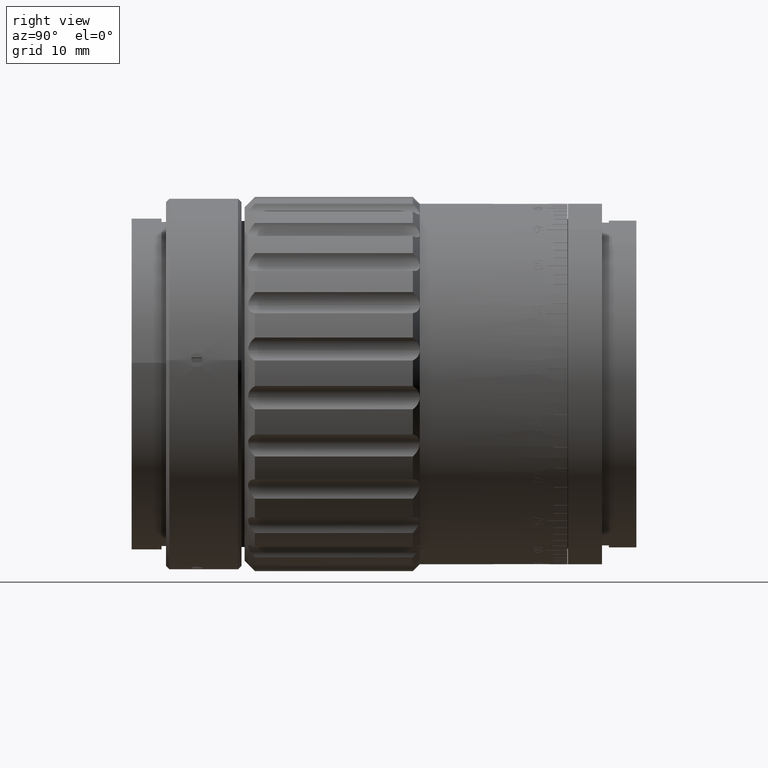
[diagram: clean part render]
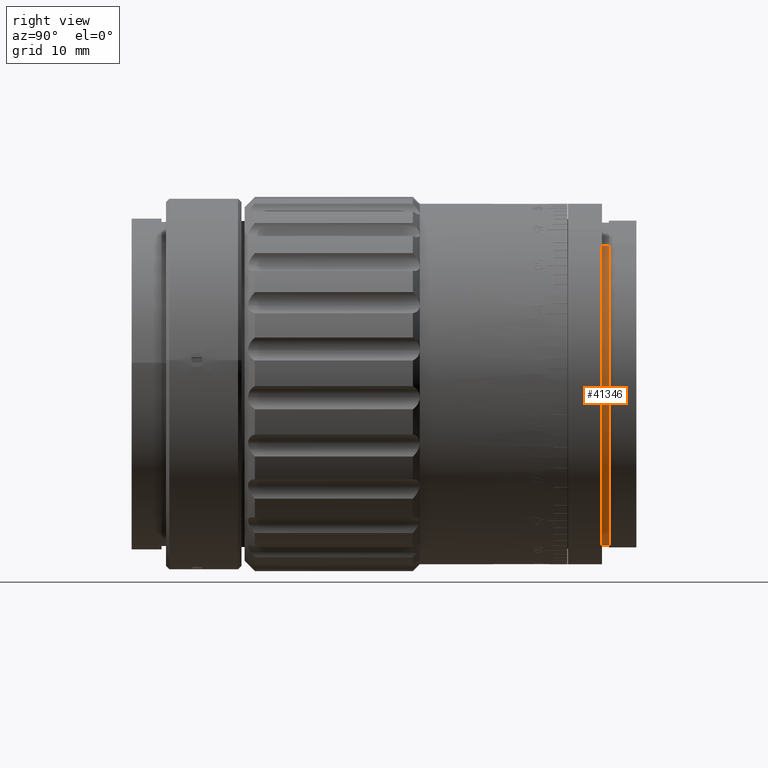
[diagram: same view with one face highlighted and labeled with its STEP entity id]
A machine part, right view. The second image highlights one B-rep face of the part: STEP entity #41346.
In plain terms, the highlighted cylindrical surface (partial cylindrical patch) has radius 23.5 mm, axis along (-0, 1, 0).
Its self-contained STEP definition (entity closure, byte-faithful):
#1326 = ORIENTED_EDGE ( 'NONE', *, *, #22859, .T. ) ;
#2405 = CARTESIAN_POINT ( 'NONE',  ( 2.877919977996280300E-015, 27.76768902714551100, -23.50000000000000000 ) ) ;
#7398 = VERTEX_POINT ( 'NONE', #37795 ) ;
#11919 = EDGE_CURVE ( 'NONE', #61753, #25146, #49926, .T. ) ;
#12095 = ORIENTED_EDGE ( 'NONE', *, *, #75044, .F. ) ;
#16204 = CIRCLE ( 'NONE', #81464, 23.50000000000000000 ) ;
#17199 = CARTESIAN_POINT ( 'NONE',  ( 0.0000000000000000000, 18.51240201808208500, 23.50000000000000000 ) ) ;
#18627 = DIRECTION ( 'NONE',  ( 0.0000000000000000000, 0.0000000000000000000, 1.000000000000000000 ) ) ;
#22859 = EDGE_CURVE ( 'NONE', #7398, #49317, #32911, .T. ) ;
#25146 = VERTEX_POINT ( 'NONE', #34106 ) ;
#26219 = CARTESIAN_POINT ( 'NONE',  ( 0.0000000000000000000, 18.51240201808208500, 0.0000000000000000000 ) ) ;
#28563 = EDGE_LOOP ( 'NONE', ( #45229, #1326, #12095, #85068 ) ) ;
#30866 = EDGE_CURVE ( 'NONE', #61753, #7398, #55517, .T. ) ;
#32911 = LINE ( 'NONE', #2405, #78818 ) ;
#32969 = CARTESIAN_POINT ( 'NONE',  ( 0.0000000000000000000, 27.76768902714551100, 23.50000000000000000 ) ) ;
#34106 = CARTESIAN_POINT ( 'NONE',  ( 0.0000000000000000000, 19.51240201808208500, 23.50000000000000000 ) ) ;
#37795 = CARTESIAN_POINT ( 'NONE',  ( 2.877919977996280300E-015, 18.51240201808208500, -23.50000000000000000 ) ) ;
#40856 = DIRECTION ( 'NONE',  ( -0.0000000000000000000, 1.000000000000000000, -0.0000000000000000000 ) ) ;
#41346 = ADVANCED_FACE ( 'NONE', ( #85510 ), #81333, .T. ) ;
#44659 = DIRECTION ( 'NONE',  ( -0.0000000000000000000, 1.000000000000000000, -0.0000000000000000000 ) ) ;
#45229 = ORIENTED_EDGE ( 'NONE', *, *, #30866, .T. ) ;
#47467 = CARTESIAN_POINT ( 'NONE',  ( 0.0000000000000000000, 19.51240201808208500, 0.0000000000000000000 ) ) ;
#49317 = VERTEX_POINT ( 'NONE', #72526 ) ;
#49926 = LINE ( 'NONE', #32969, #53020 ) ;
#53020 = VECTOR ( 'NONE', #40856, 1000.000000000000000 ) ;
#55517 = CIRCLE ( 'NONE', #72516, 23.50000000000000000 ) ;
#61753 = VERTEX_POINT ( 'NONE', #17199 ) ;
#71975 = DIRECTION ( 'NONE',  ( -0.0000000000000000000, 1.000000000000000000, -0.0000000000000000000 ) ) ;
#72516 = AXIS2_PLACEMENT_3D ( 'NONE', #26219, #71975, #86290 ) ;
#72526 = CARTESIAN_POINT ( 'NONE',  ( 2.877919977996280300E-015, 19.51240201808208500, -23.50000000000000000 ) ) ;
#72791 = DIRECTION ( 'NONE',  ( 0.0000000000000000000, 0.0000000000000000000, 1.000000000000000000 ) ) ;
#72882 = AXIS2_PLACEMENT_3D ( 'NONE', #84552, #44659, #18627 ) ;
#75044 = EDGE_CURVE ( 'NONE', #25146, #49317, #16204, .T. ) ;
#78818 = VECTOR ( 'NONE', #82567, 1000.000000000000000 ) ;
#80677 = DIRECTION ( 'NONE',  ( -0.0000000000000000000, 1.000000000000000000, -0.0000000000000000000 ) ) ;
#81333 = CYLINDRICAL_SURFACE ( 'NONE', #72882, 23.50000000000000000 ) ;
#81464 = AXIS2_PLACEMENT_3D ( 'NONE', #47467, #80677, #72791 ) ;
#82567 = DIRECTION ( 'NONE',  ( -0.0000000000000000000, 1.000000000000000000, -0.0000000000000000000 ) ) ;
#84552 = CARTESIAN_POINT ( 'NONE',  ( 0.0000000000000000000, 27.76768902714551100, 0.0000000000000000000 ) ) ;
#85068 = ORIENTED_EDGE ( 'NONE', *, *, #11919, .F. ) ;
#85510 = FACE_OUTER_BOUND ( 'NONE', #28563, .T. ) ;
#86290 = DIRECTION ( 'NONE',  ( 0.0000000000000000000, 0.0000000000000000000, 1.000000000000000000 ) ) ;